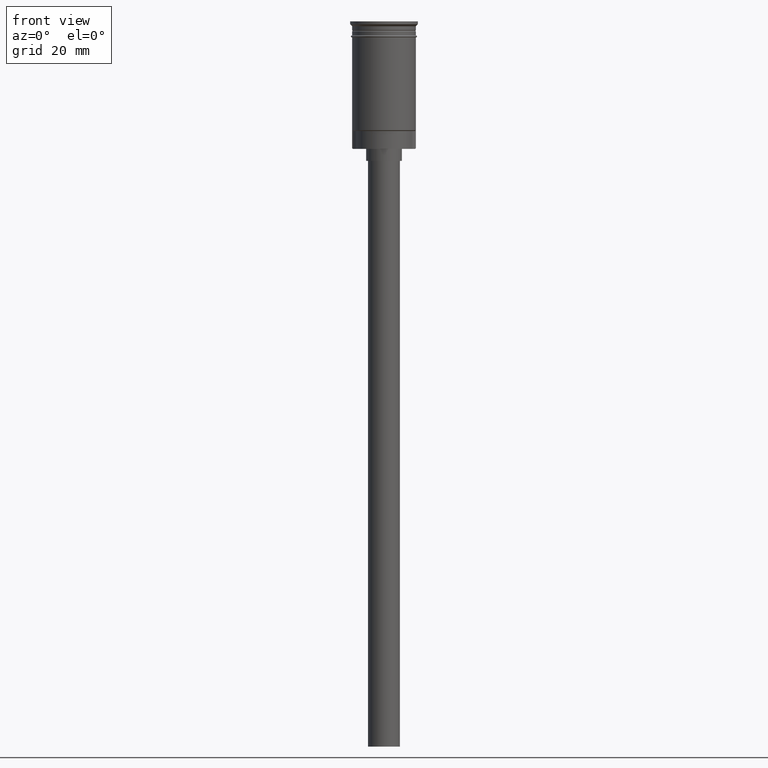
[diagram: clean part render]
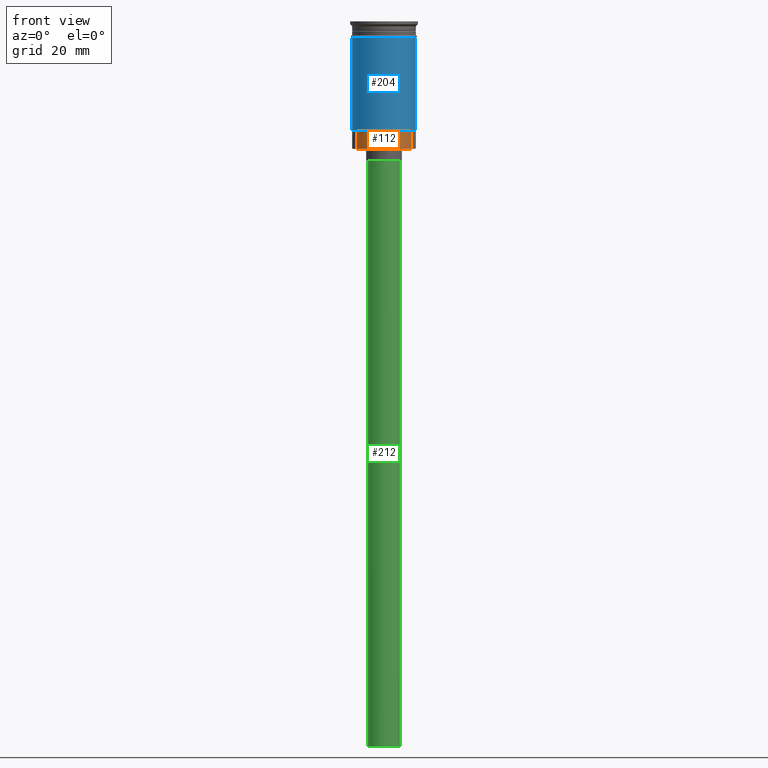
[diagram: same view with three faces highlighted in distinct colors, each labeled with its STEP entity id]
A machine part, front view with three faces highlighted in distinct colors.
Their STEP definitions:

[orange] entity #112 — the highlighted cylindrical surface (edge-blend (fillet) strip) has radius 7.05 mm, axis along (-0, -0, 1).
#1 = VERTEX_POINT ( 'NONE', #11 ) ;
#11 = CARTESIAN_POINT ( 'NONE',  ( -6.839661847014926188, -1.709247149621246686, -27.50000000000000355 ) ) ;
#41 = CIRCLE ( 'NONE', #762, 7.049999999999998934 ) ;
#72 = CARTESIAN_POINT ( 'NONE',  ( 0.000000000000000000, 0.000000000000000000, -27.50000000000000355 ) ) ;
#112 = ADVANCED_FACE ( 'NONE', ( #1410 ), #1142, .T. ) ;
#164 = EDGE_CURVE ( 'NONE', #511, #1, #1191, .T. ) ;
#170 = ORIENTED_EDGE ( 'NONE', *, *, #1155, .F. ) ;
#186 = ORIENTED_EDGE ( 'NONE', *, *, #164, .T. ) ;
#224 = CARTESIAN_POINT ( 'NONE',  ( 0.000000000000000000, 0.000000000000000000, -32.00000000000000000 ) ) ;
#248 = DIRECTION ( 'NONE',  ( -1.000000000000000000, 0.000000000000000000, 0.000000000000000000 ) ) ;
#275 = VECTOR ( 'NONE', #843, 1000.000000000000000 ) ;
#299 = AXIS2_PLACEMENT_3D ( 'NONE', #72, #564, #1047 ) ;
#318 = CARTESIAN_POINT ( 'NONE',  ( -6.839661847014926188, -1.709247149621246686, -32.00000000000000000 ) ) ;
#339 = CARTESIAN_POINT ( 'NONE',  ( 6.839661847014925300, -1.709247149621250017, -27.50000000000000355 ) ) ;
#429 = CARTESIAN_POINT ( 'NONE',  ( 0.000000000000000000, 0.000000000000000000, -32.00000000000000000 ) ) ;
#472 = CARTESIAN_POINT ( 'NONE',  ( 6.839661847014925300, -1.709247149621250017, -32.00000000000000000 ) ) ;
#476 = CARTESIAN_POINT ( 'NONE',  ( -6.839661847014926188, -1.709247149621246686, -32.00000000000000000 ) ) ;
#493 = EDGE_CURVE ( 'NONE', #690, #511, #828, .T. ) ;
#511 = VERTEX_POINT ( 'NONE', #339 ) ;
#564 = DIRECTION ( 'NONE',  ( 0.000000000000000000, 0.000000000000000000, -1.000000000000000000 ) ) ;
#657 = DIRECTION ( 'NONE',  ( -0.000000000000000000, -0.000000000000000000, 1.000000000000000000 ) ) ;
#690 = VERTEX_POINT ( 'NONE', #1169 ) ;
#703 = ORIENTED_EDGE ( 'NONE', *, *, #1082, .F. ) ;
#725 = DIRECTION ( 'NONE',  ( -0.000000000000000000, -0.000000000000000000, 1.000000000000000000 ) ) ;
#762 = AXIS2_PLACEMENT_3D ( 'NONE', #224, #1347, #248 ) ;
#811 = AXIS2_PLACEMENT_3D ( 'NONE', #429, #657, #1547 ) ;
#828 = LINE ( 'NONE', #472, #1087 ) ;
#843 = DIRECTION ( 'NONE',  ( -0.000000000000000000, -0.000000000000000000, 1.000000000000000000 ) ) ;
#1012 = VERTEX_POINT ( 'NONE', #318 ) ;
#1047 = DIRECTION ( 'NONE',  ( -1.000000000000000000, 0.000000000000000000, 0.000000000000000000 ) ) ;
#1082 = EDGE_CURVE ( 'NONE', #690, #1012, #41, .T. ) ;
#1087 = VECTOR ( 'NONE', #725, 1000.000000000000000 ) ;
#1142 = CYLINDRICAL_SURFACE ( 'NONE', #811, 7.049999999999998934 ) ;
#1155 = EDGE_CURVE ( 'NONE', #1012, #1, #1325, .T. ) ;
#1169 = CARTESIAN_POINT ( 'NONE',  ( 6.839661847014925300, -1.709247149621250017, -32.00000000000000000 ) ) ;
#1191 = CIRCLE ( 'NONE', #299, 7.049999999999998934 ) ;
#1325 = LINE ( 'NONE', #476, #275 ) ;
#1347 = DIRECTION ( 'NONE',  ( 0.000000000000000000, 0.000000000000000000, -1.000000000000000000 ) ) ;
#1388 = EDGE_LOOP ( 'NONE', ( #186, #170, #703, #1469 ) ) ;
#1410 = FACE_OUTER_BOUND ( 'NONE', #1388, .T. ) ;
#1469 = ORIENTED_EDGE ( 'NONE', *, *, #493, .T. ) ;
#1547 = DIRECTION ( 'NONE',  ( 1.000000000000000000, 0.000000000000000000, 0.000000000000000000 ) ) ;

[blue] entity #204 — the highlighted cylindrical surface (edge-blend (fillet) strip) has radius 8 mm, axis along (-0, -0, 1).
#8 = DIRECTION ( 'NONE',  ( 1.000000000000000000, 0.000000000000000000, 0.000000000000000000 ) ) ;
#35 = AXIS2_PLACEMENT_3D ( 'NONE', #759, #1226, #8 ) ;
#204 = ADVANCED_FACE ( 'NONE', ( #395 ), #1518, .T. ) ;
#225 = EDGE_CURVE ( 'NONE', #969, #602, #478, .T. ) ;
#271 = AXIS2_PLACEMENT_3D ( 'NONE', #913, #306, #791 ) ;
#282 = CARTESIAN_POINT ( 'NONE',  ( -7.999999999999996447, 9.797174393178821713E-16, 0.000000000000000000 ) ) ;
#283 = EDGE_CURVE ( 'NONE', #772, #602, #1425, .T. ) ;
#306 = DIRECTION ( 'NONE',  ( -0.000000000000000000, -0.000000000000000000, 1.000000000000000000 ) ) ;
#379 = DIRECTION ( 'NONE',  ( -0.000000000000000000, -0.000000000000000000, 1.000000000000000000 ) ) ;
#393 = DIRECTION ( 'NONE',  ( -0.000000000000000000, -0.000000000000000000, 1.000000000000000000 ) ) ;
#395 = FACE_OUTER_BOUND ( 'NONE', #405, .T. ) ;
#398 = EDGE_CURVE ( 'NONE', #848, #772, #783, .T. ) ;
#405 = EDGE_LOOP ( 'NONE', ( #999, #965, #701, #930 ) ) ;
#478 = CIRCLE ( 'NONE', #35, 8.000000000000000000 ) ;
#555 = VECTOR ( 'NONE', #1407, 1000.000000000000000 ) ;
#602 = VERTEX_POINT ( 'NONE', #1489 ) ;
#619 = CARTESIAN_POINT ( 'NONE',  ( 7.999999999999996447, 9.797174393178821713E-16, -27.29999999999996518 ) ) ;
#701 = ORIENTED_EDGE ( 'NONE', *, *, #283, .T. ) ;
#759 = CARTESIAN_POINT ( 'NONE',  ( 0.000000000000000000, 0.000000000000000000, -3.999999999999997335 ) ) ;
#772 = VERTEX_POINT ( 'NONE', #619 ) ;
#778 = CARTESIAN_POINT ( 'NONE',  ( -8.000000000000000000, 9.797174393178825657E-16, -3.999999999999997335 ) ) ;
#783 = CIRCLE ( 'NONE', #271, 7.999999999999996447 ) ;
#791 = DIRECTION ( 'NONE',  ( -1.000000000000000000, 0.000000000000000000, 0.000000000000000000 ) ) ;
#848 = VERTEX_POINT ( 'NONE', #952 ) ;
#879 = DIRECTION ( 'NONE',  ( 1.000000000000000000, 0.000000000000000000, 0.000000000000000000 ) ) ;
#906 = EDGE_CURVE ( 'NONE', #848, #969, #1129, .T. ) ;
#913 = CARTESIAN_POINT ( 'NONE',  ( 0.000000000000000000, 0.000000000000000000, -27.29999999999996518 ) ) ;
#930 = ORIENTED_EDGE ( 'NONE', *, *, #225, .F. ) ;
#952 = CARTESIAN_POINT ( 'NONE',  ( -7.999999999999992895, 0.000000000000000000, -27.29999999999996518 ) ) ;
#965 = ORIENTED_EDGE ( 'NONE', *, *, #398, .T. ) ;
#969 = VERTEX_POINT ( 'NONE', #778 ) ;
#999 = ORIENTED_EDGE ( 'NONE', *, *, #906, .F. ) ;
#1023 = CARTESIAN_POINT ( 'NONE',  ( 7.999999999999996447, 0.000000000000000000, 0.000000000000000000 ) ) ;
#1125 = CARTESIAN_POINT ( 'NONE',  ( 0.000000000000000000, 0.000000000000000000, 0.000000000000000000 ) ) ;
#1129 = LINE ( 'NONE', #282, #1463 ) ;
#1136 = AXIS2_PLACEMENT_3D ( 'NONE', #1125, #379, #879 ) ;
#1226 = DIRECTION ( 'NONE',  ( -0.000000000000000000, -0.000000000000000000, 1.000000000000000000 ) ) ;
#1407 = DIRECTION ( 'NONE',  ( -0.000000000000000000, -0.000000000000000000, 1.000000000000000000 ) ) ;
#1425 = LINE ( 'NONE', #1023, #555 ) ;
#1463 = VECTOR ( 'NONE', #393, 1000.000000000000000 ) ;
#1489 = CARTESIAN_POINT ( 'NONE',  ( 8.000000000000000000, 0.000000000000000000, -3.999999999999997335 ) ) ;
#1518 = CYLINDRICAL_SURFACE ( 'NONE', #1136, 7.999999999999996447 ) ;

[green] entity #212 — the highlighted cylindrical surface (edge-blend (fillet) strip) has radius 4 mm, axis along (-0, -0, 1).
#36 = AXIS2_PLACEMENT_3D ( 'NONE', #403, #279, #148 ) ;
#39 = AXIS2_PLACEMENT_3D ( 'NONE', #1309, #205, #1411 ) ;
#66 = EDGE_CURVE ( 'NONE', #338, #394, #963, .T. ) ;
#148 = DIRECTION ( 'NONE',  ( 1.000000000000000000, 0.000000000000000000, 0.000000000000000000 ) ) ;
#149 = DIRECTION ( 'NONE',  ( -0.000000000000000000, -0.000000000000000000, 1.000000000000000000 ) ) ;
#205 = DIRECTION ( 'NONE',  ( 0.000000000000000000, 0.000000000000000000, -1.000000000000000000 ) ) ;
#208 = CARTESIAN_POINT ( 'NONE',  ( -4.000000000000000000, 4.898587196589412829E-16, -35.00000000000000000 ) ) ;
#212 = ADVANCED_FACE ( 'NONE', ( #1380 ), #1368, .T. ) ;
#242 = ORIENTED_EDGE ( 'NONE', *, *, #1593, .T. ) ;
#279 = DIRECTION ( 'NONE',  ( -0.000000000000000000, -0.000000000000000000, 1.000000000000000000 ) ) ;
#333 = DIRECTION ( 'NONE',  ( 0.000000000000000000, 0.000000000000000000, -1.000000000000000000 ) ) ;
#338 = VERTEX_POINT ( 'NONE', #806 ) ;
#394 = VERTEX_POINT ( 'NONE', #427 ) ;
#403 = CARTESIAN_POINT ( 'NONE',  ( 0.000000000000000000, 0.000000000000000000, -182.0000000000000000 ) ) ;
#427 = CARTESIAN_POINT ( 'NONE',  ( -4.000000000000000000, 4.898587196589412829E-16, -182.0000000000000000 ) ) ;
#576 = VERTEX_POINT ( 'NONE', #208 ) ;
#607 = AXIS2_PLACEMENT_3D ( 'NONE', #1030, #333, #680 ) ;
#614 = VECTOR ( 'NONE', #882, 1000.000000000000000 ) ;
#627 = CARTESIAN_POINT ( 'NONE',  ( 4.000000000000000000, 0.000000000000000000, -35.00000000000000000 ) ) ;
#680 = DIRECTION ( 'NONE',  ( -1.000000000000000000, 0.000000000000000000, 0.000000000000000000 ) ) ;
#748 = EDGE_CURVE ( 'NONE', #1286, #576, #1324, .T. ) ;
#760 = LINE ( 'NONE', #1249, #839 ) ;
#806 = CARTESIAN_POINT ( 'NONE',  ( 4.000000000000000000, 0.000000000000000000, -182.0000000000000000 ) ) ;
#839 = VECTOR ( 'NONE', #149, 1000.000000000000000 ) ;
#882 = DIRECTION ( 'NONE',  ( -0.000000000000000000, -0.000000000000000000, 1.000000000000000000 ) ) ;
#963 = CIRCLE ( 'NONE', #607, 4.000000000000000000 ) ;
#1030 = CARTESIAN_POINT ( 'NONE',  ( 0.000000000000000000, 0.000000000000000000, -182.0000000000000000 ) ) ;
#1121 = ORIENTED_EDGE ( 'NONE', *, *, #1294, .F. ) ;
#1128 = LINE ( 'NONE', #1505, #614 ) ;
#1249 = CARTESIAN_POINT ( 'NONE',  ( 4.000000000000000000, 0.000000000000000000, -182.0000000000000000 ) ) ;
#1286 = VERTEX_POINT ( 'NONE', #627 ) ;
#1294 = EDGE_CURVE ( 'NONE', #394, #576, #1128, .T. ) ;
#1309 = CARTESIAN_POINT ( 'NONE',  ( 0.000000000000000000, 0.000000000000000000, -35.00000000000000000 ) ) ;
#1324 = CIRCLE ( 'NONE', #39, 4.000000000000000000 ) ;
#1352 = ORIENTED_EDGE ( 'NONE', *, *, #748, .T. ) ;
#1368 = CYLINDRICAL_SURFACE ( 'NONE', #36, 4.000000000000000000 ) ;
#1380 = FACE_OUTER_BOUND ( 'NONE', #1552, .T. ) ;
#1411 = DIRECTION ( 'NONE',  ( -1.000000000000000000, 0.000000000000000000, 0.000000000000000000 ) ) ;
#1467 = ORIENTED_EDGE ( 'NONE', *, *, #66, .F. ) ;
#1505 = CARTESIAN_POINT ( 'NONE',  ( -4.000000000000000000, 4.898587196589412829E-16, -182.0000000000000000 ) ) ;
#1552 = EDGE_LOOP ( 'NONE', ( #1121, #1467, #242, #1352 ) ) ;
#1593 = EDGE_CURVE ( 'NONE', #338, #1286, #760, .T. ) ;